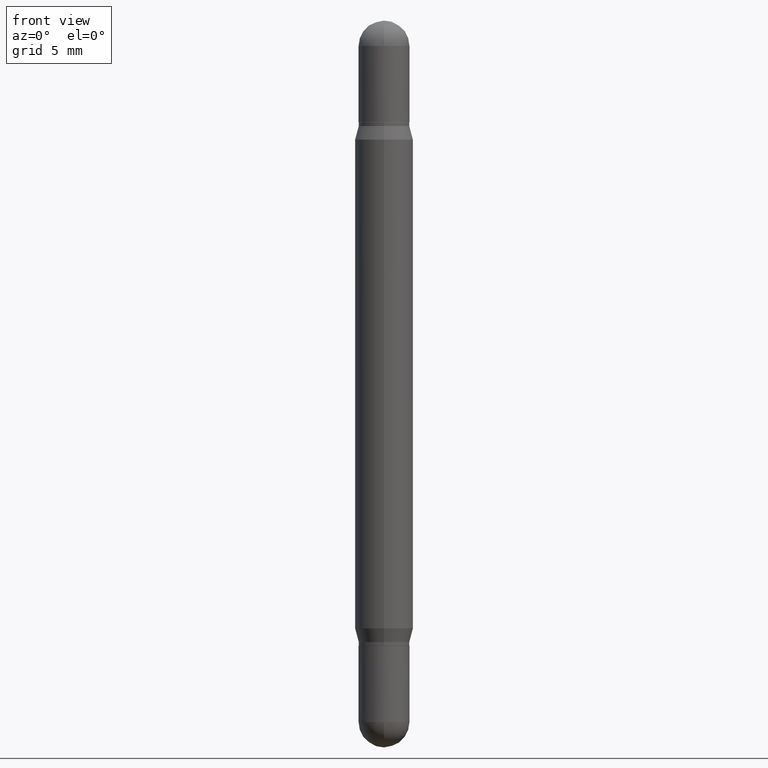
[diagram: clean part render]
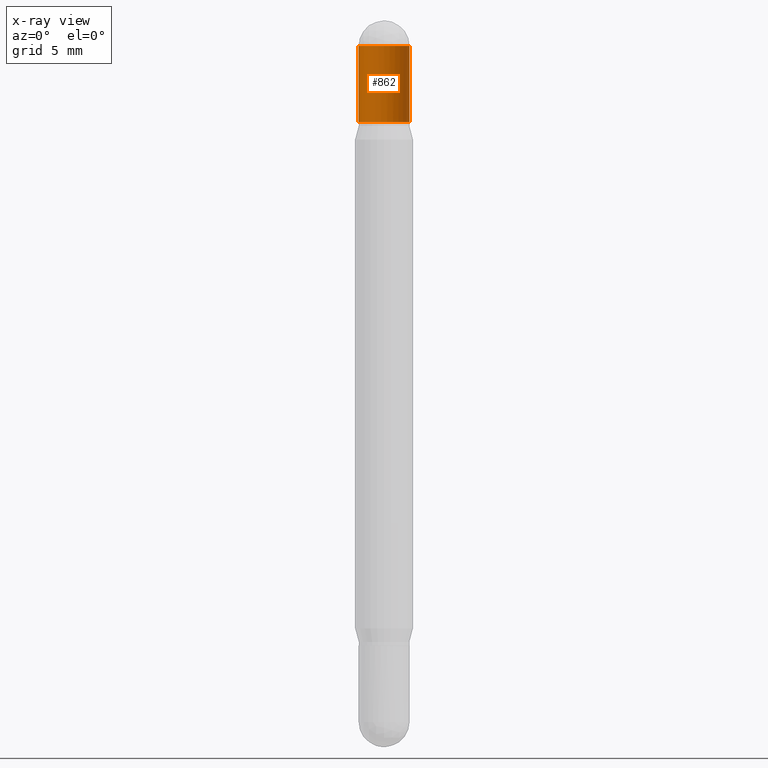
[diagram: x-ray — body ghosted, one internal face saturated and labeled with its STEP entity id]
A machine part, front view, then the same camera in x-ray: the body is ghosted and one INTERNAL B-rep face — a face not visible from any outside direction — is saturated and labeled: STEP entity #862.
In plain terms, the highlighted cylindrical surface (edge-blend (fillet) strip) has radius 1.7501 mm, axis along (-0, -0, -1).
Its self-contained STEP definition (entity closure, byte-faithful):
#13 = DIRECTION ( 'NONE',  ( 1.000000000000000000, -6.982962677686265922E-15, 0.000000000000000000 ) ) ;
#27 = VERTEX_POINT ( 'NONE', #892 ) ;
#41 = DIRECTION ( 'NONE',  ( 2.445468806185136597E-29, 3.479614466977828254E-15, 1.000000000000000000 ) ) ;
#55 = ORIENTED_EDGE ( 'NONE', *, *, #779, .T. ) ;
#89 = LINE ( 'NONE', #1031, #681 ) ;
#134 = CIRCLE ( 'NONE', #658, 0.06890000000000007230 ) ;
#162 = DIRECTION ( 'NONE',  ( 1.000000000000000000, -6.982962677686265922E-15, 0.000000000000000000 ) ) ;
#168 = DIRECTION ( 'NONE',  ( 2.445468806185136597E-29, 3.479614466977828254E-15, 1.000000000000000000 ) ) ;
#181 = DIRECTION ( 'NONE',  ( -2.445468806185136877E-29, -3.479614466977828648E-15, -1.000000000000000000 ) ) ;
#182 = DIRECTION ( 'NONE',  ( -2.445468806185136877E-29, -3.479614466977828648E-15, -1.000000000000000000 ) ) ;
#187 = VERTEX_POINT ( 'NONE', #192 ) ;
#192 = CARTESIAN_POINT ( 'NONE',  ( -0.06890000000000007230, -1.383552485239108735E-16, -0.2756000000000001782 ) ) ;
#218 = CARTESIAN_POINT ( 'NONE',  ( 0.000000000000000000, -6.861301046879293370E-15, -1.968500000000000139 ) ) ;
#227 = AXIS2_PLACEMENT_3D ( 'NONE', #218, #313, #482 ) ;
#287 = EDGE_CURVE ( 'NONE', #637, #187, #1049, .T. ) ;
#311 = CARTESIAN_POINT ( 'NONE',  ( 0.06890000000000008618, -1.092169689062953952E-15, -0.06889999999999990576 ) ) ;
#313 = DIRECTION ( 'NONE',  ( -2.445468806185136597E-29, -3.479614466977828254E-15, -1.000000000000000000 ) ) ;
#329 = VERTEX_POINT ( 'NONE', #569 ) ;
#339 = VERTEX_POINT ( 'NONE', #311 ) ;
#394 = LINE ( 'NONE', #769, #574 ) ;
#452 = CARTESIAN_POINT ( 'NONE',  ( 4.645412544229285965E-29, -2.514254054082095494E-16, -0.06889999999999990576 ) ) ;
#482 = DIRECTION ( 'NONE',  ( 1.000000000000000000, -6.982962677686273021E-15, 0.000000000000000000 ) ) ;
#505 = ORIENTED_EDGE ( 'NONE', *, *, #891, .F. ) ;
#512 = EDGE_CURVE ( 'NONE', #329, #27, #134, .T. ) ;
#564 = DIRECTION ( 'NONE',  ( 1.000000000000000000, -6.982962677686265922E-15, 0.000000000000000000 ) ) ;
#566 = CYLINDRICAL_SURFACE ( 'NONE', #227, 0.06890000000000007230 ) ;
#569 = CARTESIAN_POINT ( 'NONE',  ( 4.811261284926304785E-16, 0.06889999999999979474, -0.06890000000000015556 ) ) ;
#574 = VECTOR ( 'NONE', #181, 39.37007874015748143 ) ;
#630 = AXIS2_PLACEMENT_3D ( 'NONE', #452, #947, #13 ) ;
#637 = VERTEX_POINT ( 'NONE', #904 ) ;
#658 = AXIS2_PLACEMENT_3D ( 'NONE', #1023, #168, #162 ) ;
#678 = AXIS2_PLACEMENT_3D ( 'NONE', #815, #41, #564 ) ;
#681 = VECTOR ( 'NONE', #182, 39.37007874015748143 ) ;
#769 = CARTESIAN_POINT ( 'NONE',  ( -0.06890000000000007230, -6.388612734832834646E-15, -1.968500000000000139 ) ) ;
#779 = EDGE_CURVE ( 'NONE', #339, #637, #89, .T. ) ;
#785 = EDGE_CURVE ( 'NONE', #339, #329, #908, .T. ) ;
#815 = CARTESIAN_POINT ( 'NONE',  ( 4.139934141990817236E-29, -9.706617157325289063E-16, -0.2756000000000001782 ) ) ;
#862 = ADVANCED_FACE ( 'NONE', ( #991 ), #566, .T. ) ;
#891 = EDGE_CURVE ( 'NONE', #27, #187, #394, .T. ) ;
#892 = CARTESIAN_POINT ( 'NONE',  ( -0.06890000000000008618, -1.383552485239103558E-16, -0.06889999999999990576 ) ) ;
#904 = CARTESIAN_POINT ( 'NONE',  ( 0.06890000000000007230, -1.451787844225113236E-15, -0.2756000000000001782 ) ) ;
#908 = CIRCLE ( 'NONE', #630, 0.06890000000000007230 ) ;
#921 = ORIENTED_EDGE ( 'NONE', *, *, #785, .F. ) ;
#937 = ORIENTED_EDGE ( 'NONE', *, *, #287, .T. ) ;
#947 = DIRECTION ( 'NONE',  ( 2.445468806185136597E-29, 3.479614466977828254E-15, 1.000000000000000000 ) ) ;
#991 = FACE_OUTER_BOUND ( 'NONE', #1027, .T. ) ;
#1009 = ORIENTED_EDGE ( 'NONE', *, *, #512, .F. ) ;
#1023 = CARTESIAN_POINT ( 'NONE',  ( 4.645412544229285965E-29, -2.514254054082095494E-16, -0.06889999999999990576 ) ) ;
#1027 = EDGE_LOOP ( 'NONE', ( #505, #1009, #921, #55, #937 ) ) ;
#1031 = CARTESIAN_POINT ( 'NONE',  ( 0.06890000000000007230, -7.342427175371877898E-15, -1.968500000000000139 ) ) ;
#1049 = CIRCLE ( 'NONE', #678, 0.06890000000000007230 ) ;